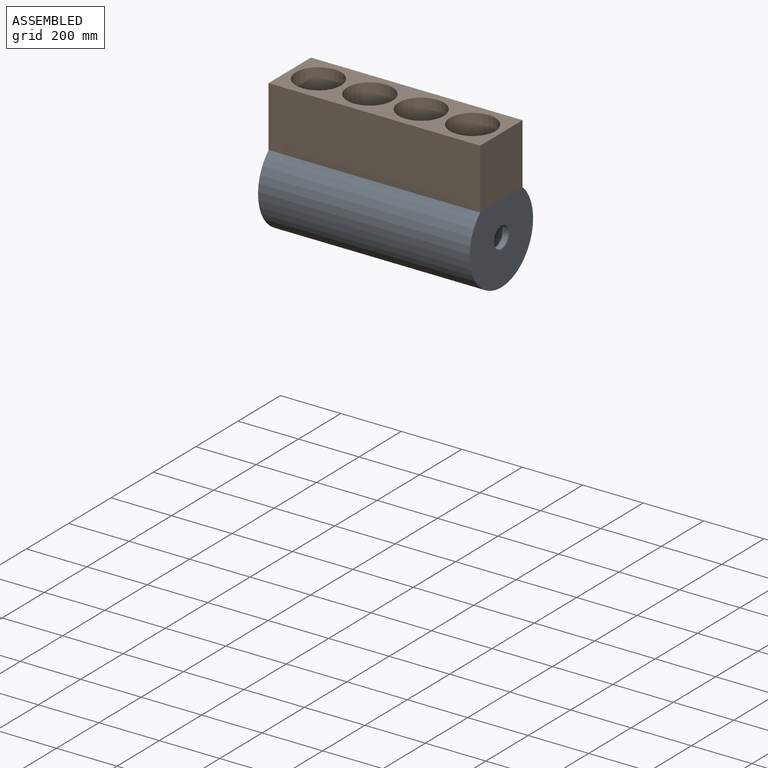
[diagram: assembled view]
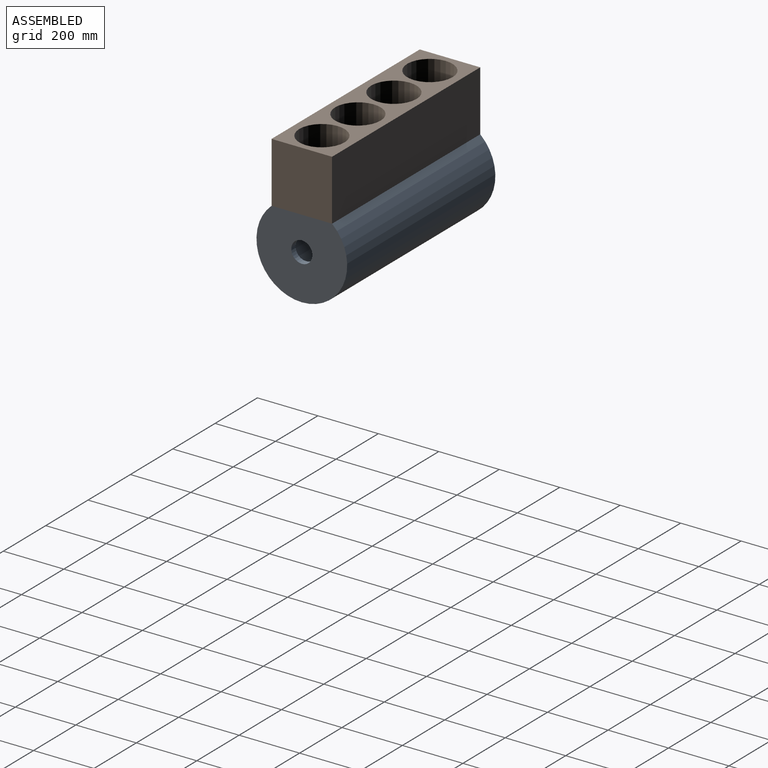
[diagram: assembled view, second angle]
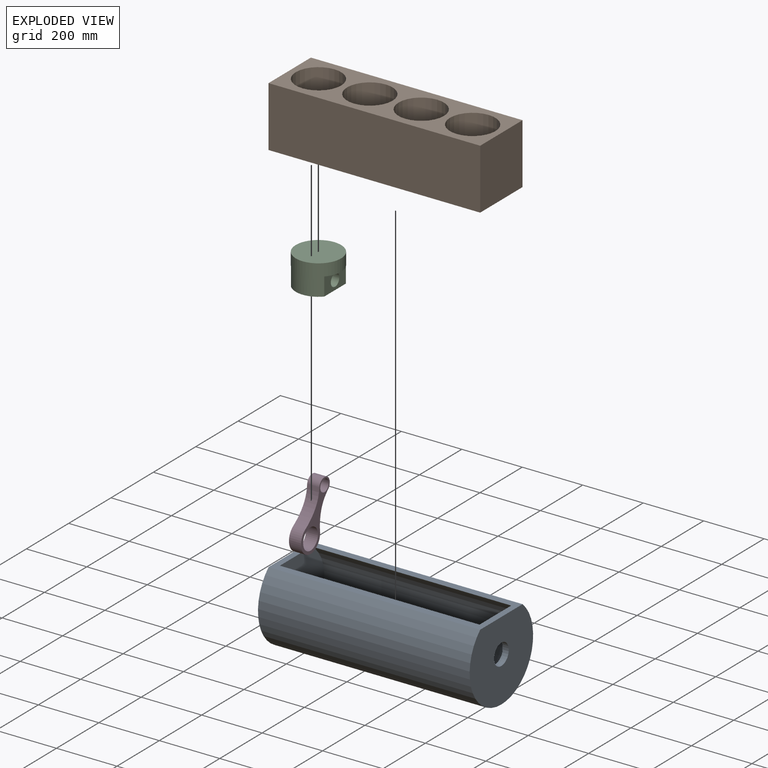
[diagram: exploded view]
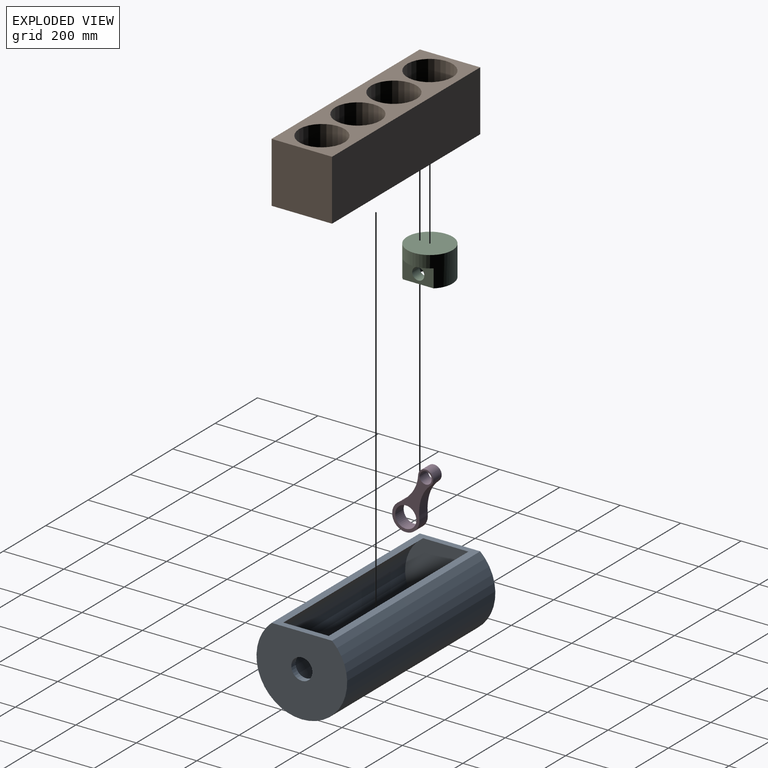
[diagram: exploded view, second angle]
ASSEMBLY  parts=4 mates=6
PART A: 9 faces, bbox 700x300x261.8 mm
  f0: plane 700x200mm, normal (0,0,1), area 41000mm2, adj f1,f2,f3,f4,f5,f6
  f1: cylinder r=150mm len=700mm, axis (-1,0,0), area 506491.6mm2, adj f0,f2,f3
  f2: plane 300x261.8mm, normal (1,0,0), area 61598.9mm2, adj f0,f1,f8
  f3: plane 300x261.8mm, normal (-1,0,0), area 61598.9mm2, adj f0,f1,f7
  f4: cylinder r=134.63mm len=660mm, axis (-1,0,0), area 453289.6mm2, adj f0,f5,f6
  f5: plane 269.26x246.43mm, normal (-1,0,0), area 50768.6mm2, adj f0,f4,f8
  f6: plane 269.26x246.43mm, normal (1,0,0), area 50768.6mm2, adj f0,f4,f7
  f7: cylinder r=35mm len=70mm, axis (1,0,0), area 4398.2mm2, adj f3,f6
  f8: cylinder r=35mm len=70mm, axis (1,0,0), area 4398.2mm2, adj f2,f5
PART B: 10 faces, bbox 700x200x200 mm
  f0: plane 200x200mm, normal (1,0,0), area 40000mm2, adj f1,f6,f8,f9
  f1: plane 700x200mm, normal (0,1,0), area 140000mm2, adj f0,f2,f8,f9
  f2: plane 200x200mm, normal (-1,0,0), area 40000mm2, adj f1,f6,f8,f9
  f3: cylinder r=75mm len=200mm, axis (0,0,-1), area 94247.8mm2, adj f8,f9
  f4: cylinder r=75mm len=200mm, axis (0,0,-1), area 94247.8mm2, adj f8,f9
  f5: cylinder r=75mm len=200mm, axis (0,0,-1), area 94247.8mm2, adj f8,f9
  f6: plane 700x200mm, normal (0,-1,0), area 140000mm2, adj f0,f2,f8,f9
  f7: cylinder r=75mm len=200mm, axis (0,0,-1), area 94247.8mm2, adj f8,f9
  f8: plane 700x200mm, normal (0,0,1), area 69314.2mm2, adj f0,f1,f2,f3,f4,f5,f6,f7
  f9: plane 700x200mm, normal (0,0,-1), area 69314.2mm2, adj f0,f1,f2,f3,f4,f5,f6,f7
PART C: 14 faces, bbox 150x150x100 mm
  f0: plane 150x110mm, normal (0,0,-1), area 11808.9mm2, adj f2,f5,f7,f9,f10,f11,f12
  f1: cylinder r=20mm len=40mm, axis (0,1,0), area 4398.2mm2, adj f5,f12
  f2: cylinder r=75mm len=150mm, axis (0,0,-1), area 33667.4mm2, adj f0,f3,f4,f5,f6,f7
  f3: plane 150x150mm, normal (0,0,1), area 17671.5mm2, adj f2
  f4: plane 101.98x20mm, normal (0,0,-1), area 1400.7mm2, adj f2,f5
  f5: plane 101.98x60mm, normal (0,-1,0), area 4862.2mm2, adj f0,f1,f2,f4
  f6: plane 101.98x20mm, normal (0,0,-1), area 1400.7mm2, adj f2,f7
  f7: plane 101.98x60mm, normal (0,1,0), area 4862.2mm2, adj f0,f2,f6,f8
  f8: cylinder r=20mm len=40mm, axis (0,1,0), area 4398.2mm2, adj f7,f10
  f9: cylinder r=40mm len=60mm, axis (0,0,-1), area 2513.3mm2, adj f0,f10,f12,f13
  f10: plane 69.28x60mm, normal (0,-1,0), area 2900.3mm2, adj f0,f8,f9,f11,f13
  f11: cylinder r=40mm len=60mm, axis (0,0,-1), area 2513.3mm2, adj f0,f10,f12,f13
  f12: plane 69.28x60mm, normal (0,1,0), area 2900.3mm2, adj f0,f1,f9,f11,f13
  f13: plane 80x40mm, normal (0,0,-1), area 3061.2mm2, adj f9,f10,f11,f12
PART D: 8 faces, bbox 90x40x220 mm
  f0: cylinder r=45mm len=90mm, axis (0,1,0), area 7552.5mm2, adj f1,f3,f6,f7
  f1: extruded ~117.61x40mm, area 4939.4mm2, adj f0,f2,f6,f7
  f2: cylinder r=25mm len=50mm, axis (0,1,0), area 3943.4mm2, adj f1,f3,f6,f7
  f3: extruded ~117.61x40mm, area 4939.4mm2, adj f0,f2,f6,f7
  f4: cylinder r=35mm len=70mm, axis (0,1,0), area 8796.5mm2, adj f6,f7
  f5: cylinder r=20mm len=40mm, axis (0,1,0), area 5026.5mm2, adj f6,f7
  f6: plane 220x90mm, normal (0,-1,0), area 6418.1mm2, adj f0,f1,f2,f3,f4,f5
  f7: plane 220x90mm, normal (0,1,0), area 6418.1mm2, adj f0,f1,f2,f3,f4,f5
PLACE A t=(-106.95,97.57,-212.92)mm
PLACE B t=(-106.95,97.57,-1.12)mm fixed
PLACE C rot(axis=(0,0,1),90deg) t=(-361.95,97.57,-58.14)mm
PLACE D rot(axis=(-0.22,-0.22,-0.95),92.9deg) t=(-361.95,31.75,-212.92)mm
MATE planar A.f0 <-> B.f9  axis (0,0,1) through (-106.95,97.57,-101.12)mm
MATE cylindrical D.f5 <-> C.f1  axis (1,0,0) through (-341.95,97.57,-78.14)mm
MATE planar D.f7 <-> C.f12  axis (1,0,0) through (-341.95,56.5,-162.25)mm
MATE fastened B.f9 <-> A.f0  axis (0,0,1) through (243.05,-2.43,-101.12)mm
MATE planar A.f2 <-> B.f0  axis (1,0,0) through (243.05,97.57,-223.75)mm
MATE cylindrical C.f2 <-> B.f5  axis (0,0,1) through (-361.95,97.57,-8.14)mm
